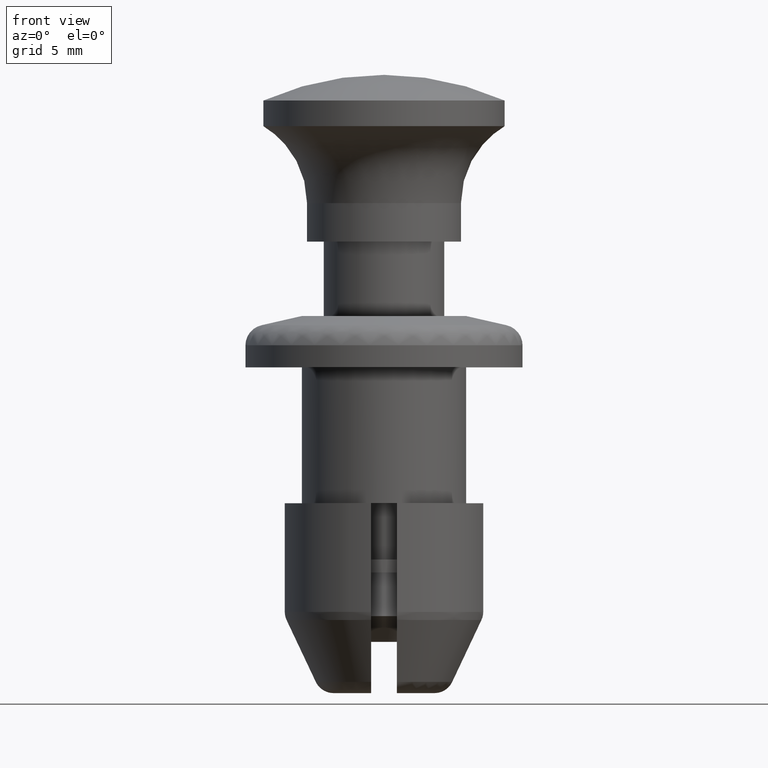
[diagram: clean part render]
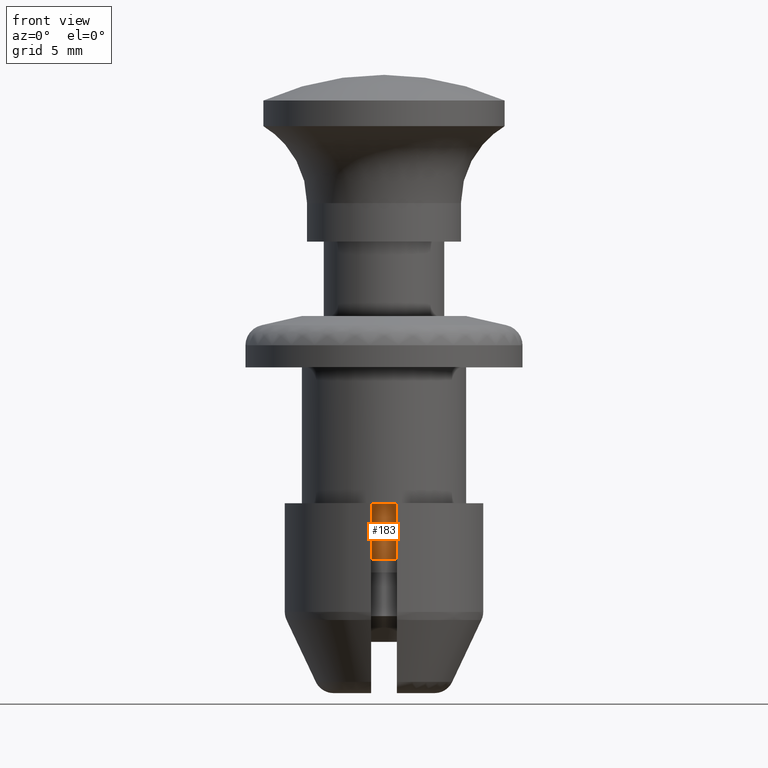
[diagram: same view with one face highlighted and labeled with its STEP entity id]
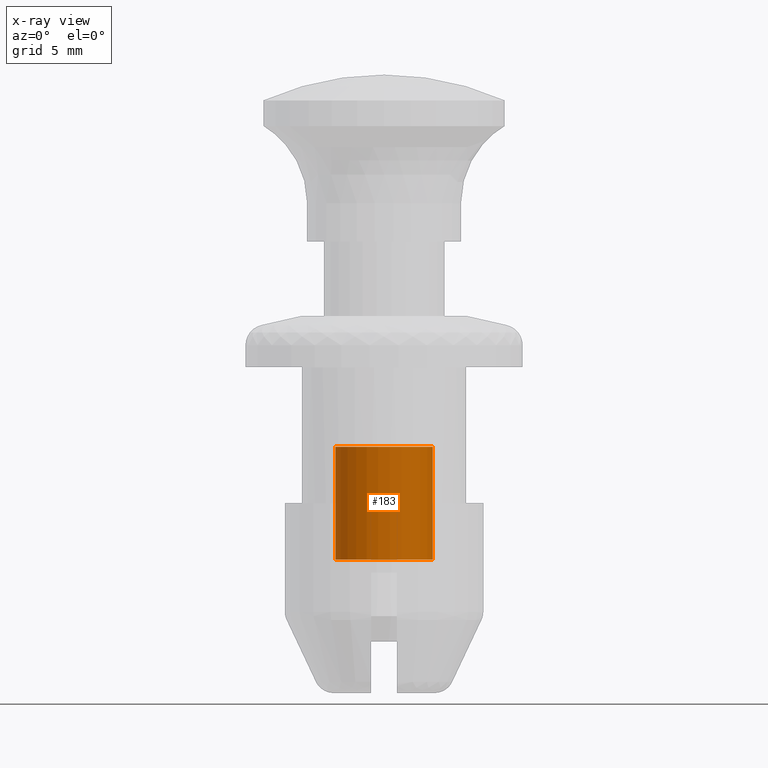
[diagram: x-ray of the same camera — body ghosted, the highlighted face saturated]
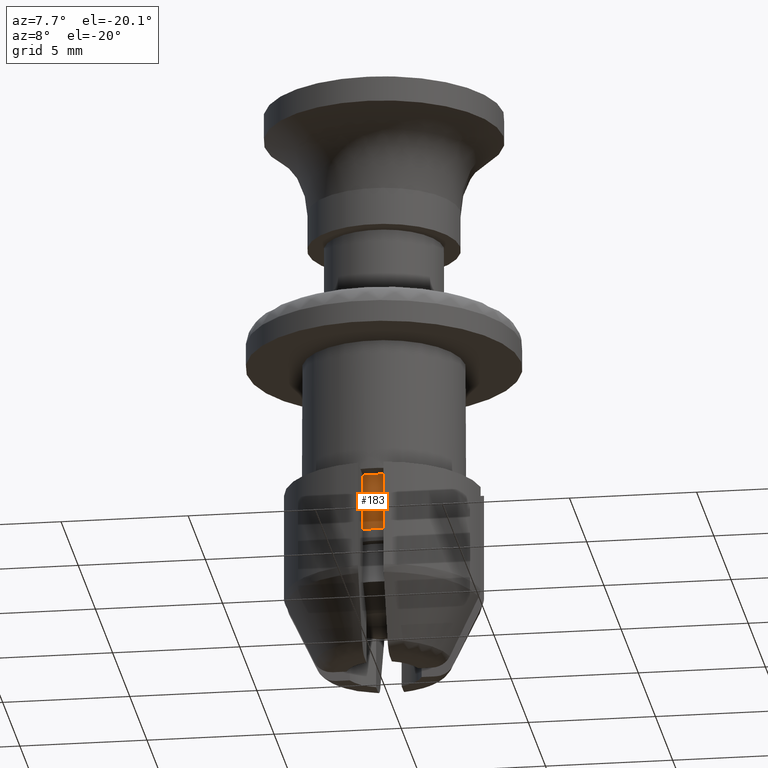
[diagram: same view with one face highlighted and labeled with its STEP entity id]
A machine part, front view. The second image highlights one B-rep face of the part: STEP entity #183.
The next image is the same camera in x-ray: the body ghosted, the highlighted face saturated — about 1% of this face is hidden behind the body in this view.
A second angle (auxiliary view) of the same face is appended — the face is thin or edge-on in the first view.
In plain terms, the highlighted cylindrical surface (partial cylindrical patch) has radius 1.9 mm, axis along (0, 0, 1).
Its self-contained STEP definition (entity closure, byte-faithful):
#183=ADVANCED_FACE('',(#908),#907,.T.);
#907=CYLINDRICAL_SURFACE('',#1518,1.90000000000E+00);
#908=FACE_OUTER_BOUND('',#1519,.T.);
#1515=CARTESIAN_POINT('',(0.00000000000E+00,0.00000000000E+00,0.00000000000E+00));
#1516=DIRECTION('',(-0.00000000000E+00,-0.00000000000E+00,1.00000000000E+00));
#1517=DIRECTION('',(1.00000000000E+00,-0.00000000000E+00,-0.00000000000E+00));
#1518=AXIS2_PLACEMENT_3D('',#1515,#1516,#1517);
#1519=EDGE_LOOP('',(#1970,#1971,#1972,#1973));
#1970=ORIENTED_EDGE('',*,*,#2165,.F.);
#1971=ORIENTED_EDGE('',*,*,#2187,.T.);
#1972=ORIENTED_EDGE('',*,*,#2189,.T.);
#1973=ORIENTED_EDGE('',*,*,#2188,.F.);
#2165=EDGE_CURVE('',#3255,#3254,#3262,.T.);
#2187=EDGE_CURVE('',#3255,#3400,#3407,.T.);
#2188=EDGE_CURVE('',#3254,#3399,#3413,.T.);
#2189=EDGE_CURVE('',#3400,#3399,#3419,.T.);
#3254=VERTEX_POINT('',#4205);
#3255=VERTEX_POINT('',#4206);
#3262=CIRCLE('',#4214,1.90000000000E+00);
#3399=VERTEX_POINT('',#4288);
#3400=VERTEX_POINT('',#4289);
#3407=(BOUNDED_CURVE() B_SPLINE_CURVE(1,(#4294,#4295),.UNSPECIFIED.,.F.,.F.) B_SPLINE_CURVE_WITH_KNOTS((2,2),(8.33333313467E-02,9.16666670832E-01),.UNSPECIFIED.) CURVE() GEOMETRIC_REPRESENTATION_ITEM() RATIONAL_B_SPLINE_CURVE((1.00000000000E+00,1.00000000000E+00)) REPRESENTATION_ITEM('') );
#3413=(BOUNDED_CURVE() B_SPLINE_CURVE(1,(#4296,#4297),.UNSPECIFIED.,.F.,.F.) B_SPLINE_CURVE_WITH_KNOTS((2,2),(8.33333333333E-02,9.16666666667E-01),.UNSPECIFIED.) CURVE() GEOMETRIC_REPRESENTATION_ITEM() RATIONAL_B_SPLINE_CURVE((7.50000000000E-01,7.50000000000E-01)) REPRESENTATION_ITEM('') );
#3419=CIRCLE('',#4301,1.90000000000E+00);
#4205=CARTESIAN_POINT('',(-1.90000000000E+00,0.00000000000E+00,-1.24000000000E+01));
#4206=CARTESIAN_POINT('',(1.90000000000E+00,2.22044604925E-16,-1.24000000000E+01));
#4211=CARTESIAN_POINT('',(0.00000000000E+00,0.00000000000E+00,-1.24000000000E+01));
#4212=DIRECTION('',(-0.00000000000E+00,0.00000000000E+00,-1.00000000000E+00));
#4213=DIRECTION('',(-1.00000000000E+00,-1.22460635382E-16,0.00000000000E+00));
#4214=AXIS2_PLACEMENT_3D('',#4211,#4212,#4213);
#4288=CARTESIAN_POINT('',(-1.90000000000E+00,0.00000000000E+00,-8.00000000000E+00));
#4289=CARTESIAN_POINT('',(1.90000000000E+00,2.22044604925E-16,-8.00000000000E+00));
#4294=CARTESIAN_POINT('',(1.90000000000E+00,0.00000000000E+00,-1.24000000105E+01));
#4295=CARTESIAN_POINT('',(1.90000000000E+00,0.00000000000E+00,-7.99999997801E+00));
#4296=CARTESIAN_POINT('',(-1.90000000000E+00,0.00000000000E+00,-1.24000000000E+01));
#4297=CARTESIAN_POINT('',(-1.90000000000E+00,0.00000000000E+00,-8.00000000000E+00));
#4298=CARTESIAN_POINT('',(0.00000000000E+00,0.00000000000E+00,-8.00000000000E+00));
#4299=DIRECTION('',(-0.00000000000E+00,0.00000000000E+00,-1.00000000000E+00));
#4300=DIRECTION('',(-1.00000000000E+00,-1.22460635382E-16,0.00000000000E+00));
#4301=AXIS2_PLACEMENT_3D('',#4298,#4299,#4300);